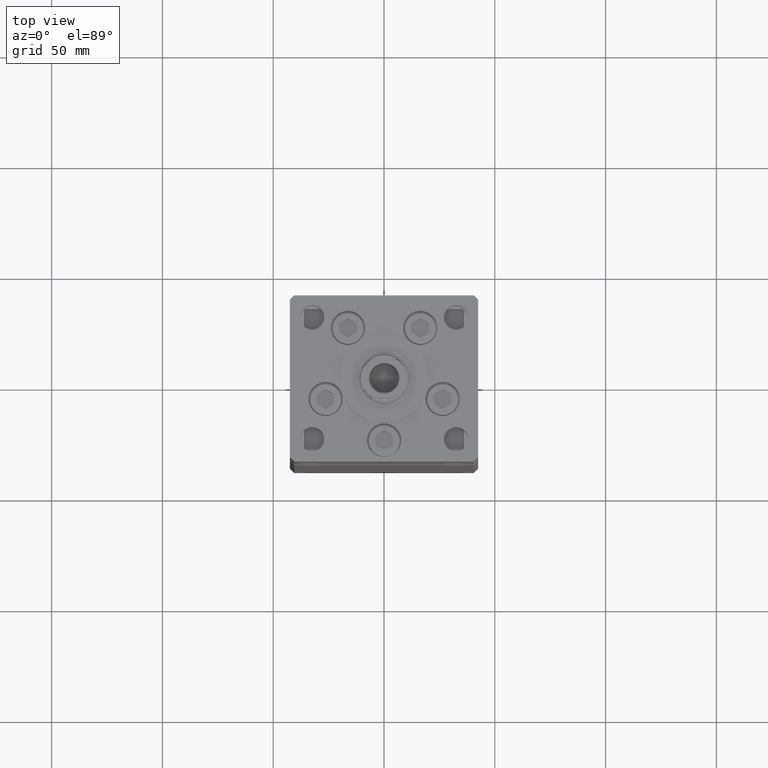
[diagram: clean part render]
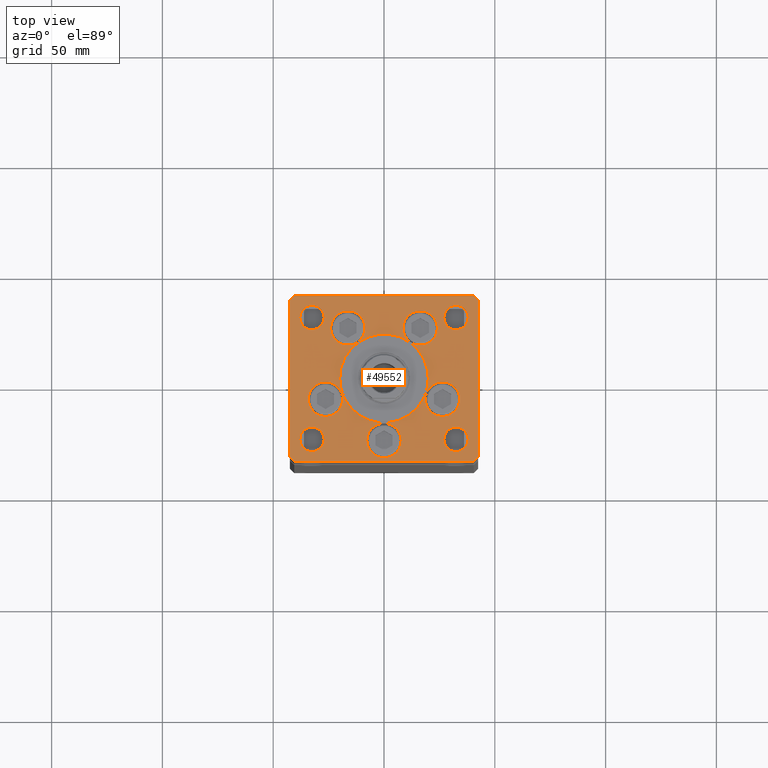
[diagram: same view with one face highlighted and labeled with its STEP entity id]
A machine part, top view. The second image highlights one B-rep face of the part: STEP entity #49552.
In plain terms, the highlighted planar face has unit normal (0, 0, 1).
Its self-contained STEP definition (entity closure, byte-faithful):
#594 = DIRECTION ( 'NONE',  ( 0.000000000000000000, 0.000000000000000000, 1.000000000000000000 ) ) ;
#653 = DIRECTION ( 'NONE',  ( 1.000000000000000000, 0.000000000000000000, 0.000000000000000000 ) ) ;
#671 = VERTEX_POINT ( 'NONE', #35401 ) ;
#724 = AXIS2_PLACEMENT_3D ( 'NONE', #4323, #49774, #45723 ) ;
#1323 = ORIENTED_EDGE ( 'NONE', *, *, #9262, .F. ) ;
#1730 = CIRCLE ( 'NONE', #31800, 7.750000000000000000 ) ;
#1876 = CARTESIAN_POINT ( 'NONE',  ( 38.00000000000000000, 27.49999999999999645, 0.000000000000000000 ) ) ;
#1882 = DIRECTION ( 'NONE',  ( 1.000000000000000000, 0.000000000000000000, 0.000000000000000000 ) ) ;
#2254 = FACE_BOUND ( 'NONE', #19009, .T. ) ;
#2547 = VECTOR ( 'NONE', #17879, 1000.000000000000000 ) ;
#2787 = FACE_BOUND ( 'NONE', #43800, .T. ) ;
#3318 = DIRECTION ( 'NONE',  ( 9.773090005503134168E-17, -1.000000000000000000, 0.000000000000000000 ) ) ;
#3429 = EDGE_CURVE ( 'NONE', #31000, #34742, #41898, .T. ) ;
#3577 = ORIENTED_EDGE ( 'NONE', *, *, #48363, .T. ) ;
#3581 = DIRECTION ( 'NONE',  ( 0.000000000000000000, 0.000000000000000000, 1.000000000000000000 ) ) ;
#3625 = DIRECTION ( 'NONE',  ( -1.000000000000000000, -4.283267841918041508E-16, 0.000000000000000000 ) ) ;
#3638 = CARTESIAN_POINT ( 'NONE',  ( -27.00000000000000355, -27.50000000000000355, 0.000000000000000000 ) ) ;
#3678 = ORIENTED_EDGE ( 'NONE', *, *, #15470, .T. ) ;
#4049 = VERTEX_POINT ( 'NONE', #14526 ) ;
#4122 = EDGE_CURVE ( 'NONE', #46448, #17427, #45164, .T. ) ;
#4323 = CARTESIAN_POINT ( 'NONE',  ( -16.32291334290544071, 22.74999999999999289, 0.000000000000000000 ) ) ;
#4527 = AXIS2_PLACEMENT_3D ( 'NONE', #24581, #37474, #653 ) ;
#4537 = ORIENTED_EDGE ( 'NONE', *, *, #4966, .T. ) ;
#4635 = EDGE_CURVE ( 'NONE', #32457, #4049, #36805, .T. ) ;
#4949 = ORIENTED_EDGE ( 'NONE', *, *, #4122, .T. ) ;
#4966 = EDGE_CURVE ( 'NONE', #24144, #25922, #51401, .T. ) ;
#5371 = CIRCLE ( 'NONE', #39734, 7.750000000000000000 ) ;
#5508 = CARTESIAN_POINT ( 'NONE',  ( -20.00000000000000000, -6.938893903907228378E-15, 0.000000000000000000 ) ) ;
#5841 = AXIS2_PLACEMENT_3D ( 'NONE', #22706, #6294, #31319 ) ;
#5997 = VERTEX_POINT ( 'NONE', #27962 ) ;
#6294 = DIRECTION ( 'NONE',  ( 0.000000000000000000, 0.000000000000000000, 1.000000000000000000 ) ) ;
#6395 = AXIS2_PLACEMENT_3D ( 'NONE', #51793, #11420, #20758 ) ;
#7018 = CARTESIAN_POINT ( 'NONE',  ( 40.50000000000000711, 37.50000000000000711, 0.000000000000000000 ) ) ;
#7063 = CARTESIAN_POINT ( 'NONE',  ( 26.39865316429777664, -9.333333333333330373, 0.000000000000000000 ) ) ;
#7826 = EDGE_CURVE ( 'NONE', #27409, #13074, #44521, .T. ) ;
#7900 = DIRECTION ( 'NONE',  ( 1.000000000000000000, 1.370645709413773283E-15, 0.000000000000000000 ) ) ;
#8226 = VECTOR ( 'NONE', #3625, 1000.000000000000000 ) ;
#8261 = EDGE_CURVE ( 'NONE', #15419, #671, #52244, .T. ) ;
#8325 = EDGE_CURVE ( 'NONE', #12261, #29626, #29031, .T. ) ;
#8437 = VERTEX_POINT ( 'NONE', #34687 ) ;
#8676 = CARTESIAN_POINT ( 'NONE',  ( 18.64865316429777664, -9.333333333333328596, 0.000000000000000000 ) ) ;
#9028 = CARTESIAN_POINT ( 'NONE',  ( -40.50000000000000000, 37.49999999999997158, 0.000000000000000000 ) ) ;
#9262 = EDGE_CURVE ( 'NONE', #32547, #23015, #11023, .T. ) ;
#9310 = CARTESIAN_POINT ( 'NONE',  ( 42.50000000000000711, -35.49999999999992895, 0.000000000000000000 ) ) ;
#9434 = CARTESIAN_POINT ( 'NONE',  ( -7.750000000000000000, -28.00000000000000000, 0.000000000000000000 ) ) ;
#9456 = CIRCLE ( 'NONE', #48103, 7.750000000000000000 ) ;
#9707 = VERTEX_POINT ( 'NONE', #49383 ) ;
#9744 = VERTEX_POINT ( 'NONE', #17072 ) ;
#9830 = DIRECTION ( 'NONE',  ( 0.000000000000000000, 0.000000000000000000, 1.000000000000000000 ) ) ;
#9873 = CARTESIAN_POINT ( 'NONE',  ( 32.50000000000000000, -27.50000000000000355, 0.000000000000000000 ) ) ;
#10185 = DIRECTION ( 'NONE',  ( 0.000000000000000000, 0.000000000000000000, 1.000000000000000000 ) ) ;
#10249 = EDGE_CURVE ( 'NONE', #9744, #18575, #23137, .T. ) ;
#10275 = EDGE_CURVE ( 'NONE', #8437, #48485, #15658, .T. ) ;
#10840 = EDGE_CURVE ( 'NONE', #17427, #48818, #46225, .T. ) ;
#11023 = CIRCLE ( 'NONE', #15320, 7.750000000000000000 ) ;
#11066 = CIRCLE ( 'NONE', #32589, 5.499999999999998224 ) ;
#11128 = EDGE_CURVE ( 'NONE', #13074, #27409, #11066, .T. ) ;
#11325 = DIRECTION ( 'NONE',  ( 0.000000000000000000, 0.000000000000000000, 1.000000000000000000 ) ) ;
#11420 = DIRECTION ( 'NONE',  ( 0.000000000000000000, 0.000000000000000000, 1.000000000000000000 ) ) ;
#11878 = AXIS2_PLACEMENT_3D ( 'NONE', #43031, #26082, #42488 ) ;
#12183 = CARTESIAN_POINT ( 'NONE',  ( 40.50000000000000711, 37.50000000000000711, 0.000000000000000000 ) ) ;
#12261 = VERTEX_POINT ( 'NONE', #52870 ) ;
#12697 = LINE ( 'NONE', #40965, #31443 ) ;
#12874 = VERTEX_POINT ( 'NONE', #7018 ) ;
#13038 = LINE ( 'NONE', #33781, #2547 ) ;
#13074 = VERTEX_POINT ( 'NONE', #1876 ) ;
#13620 = VECTOR ( 'NONE', #34923, 1000.000000000000000 ) ;
#14223 = DIRECTION ( 'NONE',  ( 1.000000000000000000, 0.000000000000000000, 0.000000000000000000 ) ) ;
#14434 = CIRCLE ( 'NONE', #44532, 20.00000000000000000 ) ;
#14526 = CARTESIAN_POINT ( 'NONE',  ( 27.00000000000000355, -27.50000000000000355, 0.000000000000000000 ) ) ;
#14627 = CIRCLE ( 'NONE', #28396, 5.499999999999998224 ) ;
#14804 = CIRCLE ( 'NONE', #4527, 20.00000000000000000 ) ;
#14933 = CARTESIAN_POINT ( 'NONE',  ( 0.000000000000000000, -28.00000000000000000, 0.000000000000000000 ) ) ;
#15116 = DIRECTION ( 'NONE',  ( 1.000000000000000000, 0.000000000000000000, 0.000000000000000000 ) ) ;
#15320 = AXIS2_PLACEMENT_3D ( 'NONE', #43557, #38723, #14223 ) ;
#15358 = DIRECTION ( 'NONE',  ( 1.000000000000000000, 0.000000000000000000, 0.000000000000000000 ) ) ;
#15378 = DIRECTION ( 'NONE',  ( -0.7071067811865524577, 0.7071067811865426878, 0.000000000000000000 ) ) ;
#15419 = VERTEX_POINT ( 'NONE', #28933 ) ;
#15470 = EDGE_CURVE ( 'NONE', #25922, #24144, #14627, .T. ) ;
#15658 = LINE ( 'NONE', #52262, #25697 ) ;
#15754 = ORIENTED_EDGE ( 'NONE', *, *, #36021, .T. ) ;
#15763 = EDGE_CURVE ( 'NONE', #28450, #23294, #20712, .T. ) ;
#15805 = EDGE_LOOP ( 'NONE', ( #32218, #21768 ) ) ;
#17044 = ORIENTED_EDGE ( 'NONE', *, *, #8261, .F. ) ;
#17072 = CARTESIAN_POINT ( 'NONE',  ( 34.14865316429777664, -9.333333333333330373, 0.000000000000000000 ) ) ;
#17427 = VERTEX_POINT ( 'NONE', #9310 ) ;
#17462 = DIRECTION ( 'NONE',  ( 1.000000000000000000, 0.000000000000000000, 0.000000000000000000 ) ) ;
#17879 = DIRECTION ( 'NONE',  ( 0.7071067811865487940, -0.7071067811865463515, 0.000000000000000000 ) ) ;
#18569 = ORIENTED_EDGE ( 'NONE', *, *, #21909, .F. ) ;
#18575 = VERTEX_POINT ( 'NONE', #8676 ) ;
#19009 = EDGE_LOOP ( 'NONE', ( #50948, #42644 ) ) ;
#19172 = FACE_OUTER_BOUND ( 'NONE', #41273, .T. ) ;
#19321 = ORIENTED_EDGE ( 'NONE', *, *, #10275, .T. ) ;
#19496 = CARTESIAN_POINT ( 'NONE',  ( -42.50000000000000000, -35.50000000000004263, 0.000000000000000000 ) ) ;
#19917 = DIRECTION ( 'NONE',  ( 0.7071067811865474617, 0.7071067811865474617, 0.000000000000000000 ) ) ;
#19920 = ORIENTED_EDGE ( 'NONE', *, *, #38107, .F. ) ;
#20712 = CIRCLE ( 'NONE', #49056, 5.499999999999998224 ) ;
#20758 = DIRECTION ( 'NONE',  ( 1.000000000000000000, 0.000000000000000000, 0.000000000000000000 ) ) ;
#21130 = EDGE_CURVE ( 'NONE', #9707, #28886, #14804, .T. ) ;
#21306 = EDGE_CURVE ( 'NONE', #48818, #12874, #27230, .T. ) ;
#21768 = ORIENTED_EDGE ( 'NONE', *, *, #8325, .F. ) ;
#21909 = EDGE_CURVE ( 'NONE', #23015, #32547, #5371, .T. ) ;
#22080 = VERTEX_POINT ( 'NONE', #9028 ) ;
#22109 = DIRECTION ( 'NONE',  ( -0.7071067811865536790, -0.7071067811865414665, 0.000000000000000000 ) ) ;
#22138 = FACE_BOUND ( 'NONE', #39496, .T. ) ;
#22706 = CARTESIAN_POINT ( 'NONE',  ( 32.50000000000000000, 27.49999999999999645, 0.000000000000000000 ) ) ;
#22943 = FACE_BOUND ( 'NONE', #15805, .T. ) ;
#23015 = VERTEX_POINT ( 'NONE', #25125 ) ;
#23137 = CIRCLE ( 'NONE', #29114, 7.750000000000000000 ) ;
#23294 = VERTEX_POINT ( 'NONE', #39890 ) ;
#23572 = CARTESIAN_POINT ( 'NONE',  ( -18.64865316429777664, -9.333333333333330373, 0.000000000000000000 ) ) ;
#23805 = DIRECTION ( 'NONE',  ( -1.000000000000000000, 0.000000000000000000, 0.000000000000000000 ) ) ;
#24144 = VERTEX_POINT ( 'NONE', #47723 ) ;
#24411 = ORIENTED_EDGE ( 'NONE', *, *, #28041, .T. ) ;
#24486 = VECTOR ( 'NONE', #22109, 1000.000000000000000 ) ;
#24581 = CARTESIAN_POINT ( 'NONE',  ( 0.000000000000000000, -6.938893903907228378E-15, 0.000000000000000000 ) ) ;
#25125 = CARTESIAN_POINT ( 'NONE',  ( -34.14865316429777664, -9.333333333333328596, 0.000000000000000000 ) ) ;
#25257 = CARTESIAN_POINT ( 'NONE',  ( 40.50000000000001421, -37.49999999999992184, 0.000000000000000000 ) ) ;
#25275 = ORIENTED_EDGE ( 'NONE', *, *, #21306, .T. ) ;
#25697 = VECTOR ( 'NONE', #3318, 1000.000000000000000 ) ;
#25922 = VERTEX_POINT ( 'NONE', #52219 ) ;
#26082 = DIRECTION ( 'NONE',  ( -0.000000000000000000, -0.000000000000000000, -1.000000000000000000 ) ) ;
#26356 = AXIS2_PLACEMENT_3D ( 'NONE', #32632, #49034, #28577 ) ;
#26407 = CARTESIAN_POINT ( 'NONE',  ( -40.50000000000000000, 37.49999999999997158, 0.000000000000000000 ) ) ;
#26438 = FACE_BOUND ( 'NONE', #52886, .T. ) ;
#26709 = FACE_BOUND ( 'NONE', #31374, .T. ) ;
#27230 = LINE ( 'NONE', #51980, #48340 ) ;
#27409 = VERTEX_POINT ( 'NONE', #35965 ) ;
#27721 = ORIENTED_EDGE ( 'NONE', *, *, #32992, .T. ) ;
#27962 = CARTESIAN_POINT ( 'NONE',  ( -40.50000000000000711, -37.50000000000003553, 0.000000000000000000 ) ) ;
#28041 = EDGE_CURVE ( 'NONE', #4049, #32457, #44231, .T. ) ;
#28396 = AXIS2_PLACEMENT_3D ( 'NONE', #39941, #36700, #23805 ) ;
#28450 = VERTEX_POINT ( 'NONE', #3638 ) ;
#28529 = CARTESIAN_POINT ( 'NONE',  ( 16.32291334290544071, 22.74999999999999289, 0.000000000000000000 ) ) ;
#28577 = DIRECTION ( 'NONE',  ( 1.000000000000000000, 0.000000000000000000, 0.000000000000000000 ) ) ;
#28683 = DIRECTION ( 'NONE',  ( 0.000000000000000000, 0.000000000000000000, 1.000000000000000000 ) ) ;
#28886 = VERTEX_POINT ( 'NONE', #5508 ) ;
#28933 = CARTESIAN_POINT ( 'NONE',  ( 24.07291334290544071, 22.74999999999999289, 0.000000000000000000 ) ) ;
#28973 = EDGE_LOOP ( 'NONE', ( #3678, #4537 ) ) ;
#29007 = ORIENTED_EDGE ( 'NONE', *, *, #51865, .F. ) ;
#29031 = CIRCLE ( 'NONE', #724, 7.750000000000000000 ) ;
#29114 = AXIS2_PLACEMENT_3D ( 'NONE', #7063, #3581, #32091 ) ;
#29272 = DIRECTION ( 'NONE',  ( -0.000000000000000000, -0.000000000000000000, -1.000000000000000000 ) ) ;
#29348 = ORIENTED_EDGE ( 'NONE', *, *, #21130, .F. ) ;
#29626 = VERTEX_POINT ( 'NONE', #33047 ) ;
#29670 = CARTESIAN_POINT ( 'NONE',  ( 32.50000000000000000, -27.50000000000000355, 0.000000000000000000 ) ) ;
#30092 = CARTESIAN_POINT ( 'NONE',  ( 42.50000000000000711, -35.49999999999992895, 0.000000000000000000 ) ) ;
#30664 = AXIS2_PLACEMENT_3D ( 'NONE', #14933, #31369, #47770 ) ;
#30832 = ORIENTED_EDGE ( 'NONE', *, *, #10249, .F. ) ;
#30885 = DIRECTION ( 'NONE',  ( 0.000000000000000000, 0.000000000000000000, 1.000000000000000000 ) ) ;
#30903 = EDGE_CURVE ( 'NONE', #671, #15419, #35598, .T. ) ;
#31000 = VERTEX_POINT ( 'NONE', #9434 ) ;
#31319 = DIRECTION ( 'NONE',  ( 1.000000000000000000, 0.000000000000000000, 0.000000000000000000 ) ) ;
#31369 = DIRECTION ( 'NONE',  ( 0.000000000000000000, 0.000000000000000000, 1.000000000000000000 ) ) ;
#31374 = EDGE_LOOP ( 'NONE', ( #1323, #18569 ) ) ;
#31443 = VECTOR ( 'NONE', #7900, 1000.000000000000000 ) ;
#31800 = AXIS2_PLACEMENT_3D ( 'NONE', #34425, #10185, #41676 ) ;
#32091 = DIRECTION ( 'NONE',  ( 1.000000000000000000, 0.000000000000000000, 0.000000000000000000 ) ) ;
#32186 = CARTESIAN_POINT ( 'NONE',  ( 7.750000000000000000, -28.00000000000000000, 0.000000000000000000 ) ) ;
#32218 = ORIENTED_EDGE ( 'NONE', *, *, #51919, .F. ) ;
#32457 = VERTEX_POINT ( 'NONE', #44008 ) ;
#32547 = VERTEX_POINT ( 'NONE', #23572 ) ;
#32589 = AXIS2_PLACEMENT_3D ( 'NONE', #45899, #9830, #42926 ) ;
#32632 = CARTESIAN_POINT ( 'NONE',  ( -32.50000000000000000, -27.50000000000000355, 0.000000000000000000 ) ) ;
#32986 = CARTESIAN_POINT ( 'NONE',  ( -26.39865316429777664, -9.333333333333330373, 0.000000000000000000 ) ) ;
#32992 = EDGE_CURVE ( 'NONE', #22080, #8437, #42812, .T. ) ;
#33047 = CARTESIAN_POINT ( 'NONE',  ( -8.572913342905440715, 22.74999999999999289, 0.000000000000000000 ) ) ;
#33443 = LINE ( 'NONE', #12183, #8226 ) ;
#33716 = DIRECTION ( 'NONE',  ( -0.000000000000000000, -0.000000000000000000, -1.000000000000000000 ) ) ;
#33781 = CARTESIAN_POINT ( 'NONE',  ( -42.50000000000000000, -35.50000000000004263, 0.000000000000000000 ) ) ;
#33860 = EDGE_LOOP ( 'NONE', ( #49617, #24411 ) ) ;
#33952 = AXIS2_PLACEMENT_3D ( 'NONE', #9873, #29272, #34383 ) ;
#34163 = DIRECTION ( 'NONE',  ( 0.000000000000000000, 0.000000000000000000, 1.000000000000000000 ) ) ;
#34349 = ORIENTED_EDGE ( 'NONE', *, *, #30903, .F. ) ;
#34383 = DIRECTION ( 'NONE',  ( -1.000000000000000000, 0.000000000000000000, 0.000000000000000000 ) ) ;
#34425 = CARTESIAN_POINT ( 'NONE',  ( -16.32291334290544071, 22.74999999999999289, 0.000000000000000000 ) ) ;
#34687 = CARTESIAN_POINT ( 'NONE',  ( -42.50000000000000711, 35.50000000000000000, 0.000000000000000000 ) ) ;
#34742 = VERTEX_POINT ( 'NONE', #32186 ) ;
#34923 = DIRECTION ( 'NONE',  ( 9.773090005503145261E-17, 1.000000000000000000, 0.000000000000000000 ) ) ;
#35401 = CARTESIAN_POINT ( 'NONE',  ( 8.572913342905442491, 22.74999999999999289, 0.000000000000000000 ) ) ;
#35598 = CIRCLE ( 'NONE', #6395, 7.750000000000000000 ) ;
#35965 = CARTESIAN_POINT ( 'NONE',  ( 27.00000000000000355, 27.49999999999999645, 0.000000000000000000 ) ) ;
#36009 = EDGE_CURVE ( 'NONE', #5997, #46448, #12697, .T. ) ;
#36021 = EDGE_CURVE ( 'NONE', #12874, #22080, #33443, .T. ) ;
#36331 = ORIENTED_EDGE ( 'NONE', *, *, #37810, .F. ) ;
#36700 = DIRECTION ( 'NONE',  ( -0.000000000000000000, -0.000000000000000000, -1.000000000000000000 ) ) ;
#36805 = CIRCLE ( 'NONE', #47946, 5.499999999999998224 ) ;
#36911 = ORIENTED_EDGE ( 'NONE', *, *, #36009, .T. ) ;
#37474 = DIRECTION ( 'NONE',  ( 0.000000000000000000, 0.000000000000000000, 1.000000000000000000 ) ) ;
#37810 = EDGE_CURVE ( 'NONE', #34742, #31000, #49560, .T. ) ;
#38107 = EDGE_CURVE ( 'NONE', #23294, #28450, #50444, .T. ) ;
#38178 = CARTESIAN_POINT ( 'NONE',  ( 26.39865316429777664, -9.333333333333330373, 0.000000000000000000 ) ) ;
#38707 = DIRECTION ( 'NONE',  ( 0.000000000000000000, 0.000000000000000000, 1.000000000000000000 ) ) ;
#38723 = DIRECTION ( 'NONE',  ( 0.000000000000000000, 0.000000000000000000, 1.000000000000000000 ) ) ;
#38811 = DIRECTION ( 'NONE',  ( -0.000000000000000000, 0.000000000000000000, 1.000000000000000000 ) ) ;
#39183 = EDGE_LOOP ( 'NONE', ( #30832, #29007 ) ) ;
#39342 = FACE_BOUND ( 'NONE', #33860, .T. ) ;
#39496 = EDGE_LOOP ( 'NONE', ( #40472, #29348 ) ) ;
#39614 = PLANE ( 'NONE',  #53190 ) ;
#39734 = AXIS2_PLACEMENT_3D ( 'NONE', #32986, #28683, #49397 ) ;
#39890 = CARTESIAN_POINT ( 'NONE',  ( -38.00000000000000000, -27.50000000000000355, 0.000000000000000000 ) ) ;
#39941 = CARTESIAN_POINT ( 'NONE',  ( -32.50000000000000000, 27.50000000000000711, 0.000000000000000000 ) ) ;
#40472 = ORIENTED_EDGE ( 'NONE', *, *, #41685, .F. ) ;
#40965 = CARTESIAN_POINT ( 'NONE',  ( -40.50000000000000711, -37.50000000000003553, 0.000000000000000000 ) ) ;
#41273 = EDGE_LOOP ( 'NONE', ( #3577, #36911, #4949, #41859, #25275, #15754, #27721, #19321 ) ) ;
#41443 = CARTESIAN_POINT ( 'NONE',  ( -32.50000000000000000, -27.50000000000000355, 0.000000000000000000 ) ) ;
#41676 = DIRECTION ( 'NONE',  ( 1.000000000000000000, 0.000000000000000000, 0.000000000000000000 ) ) ;
#41685 = EDGE_CURVE ( 'NONE', #28886, #9707, #14434, .T. ) ;
#41708 = DIRECTION ( 'NONE',  ( 1.000000000000000000, 0.000000000000000000, 0.000000000000000000 ) ) ;
#41859 = ORIENTED_EDGE ( 'NONE', *, *, #10840, .T. ) ;
#41898 = CIRCLE ( 'NONE', #51359, 7.750000000000000000 ) ;
#42488 = DIRECTION ( 'NONE',  ( -1.000000000000000000, 0.000000000000000000, 0.000000000000000000 ) ) ;
#42577 = FACE_BOUND ( 'NONE', #49094, .T. ) ;
#42644 = ORIENTED_EDGE ( 'NONE', *, *, #7826, .F. ) ;
#42812 = LINE ( 'NONE', #26407, #24486 ) ;
#42926 = DIRECTION ( 'NONE',  ( 1.000000000000000000, 0.000000000000000000, 0.000000000000000000 ) ) ;
#43031 = CARTESIAN_POINT ( 'NONE',  ( -32.50000000000000000, 27.50000000000000711, 0.000000000000000000 ) ) ;
#43373 = CARTESIAN_POINT ( 'NONE',  ( 42.50000000000001421, 35.50000000000002132, 0.000000000000000000 ) ) ;
#43557 = CARTESIAN_POINT ( 'NONE',  ( -26.39865316429777664, -9.333333333333330373, 0.000000000000000000 ) ) ;
#43800 = EDGE_LOOP ( 'NONE', ( #36331, #48969 ) ) ;
#44008 = CARTESIAN_POINT ( 'NONE',  ( 38.00000000000000000, -27.50000000000000355, 0.000000000000000000 ) ) ;
#44231 = CIRCLE ( 'NONE', #33952, 5.499999999999998224 ) ;
#44521 = CIRCLE ( 'NONE', #5841, 5.499999999999998224 ) ;
#44532 = AXIS2_PLACEMENT_3D ( 'NONE', #45463, #34163, #17462 ) ;
#45164 = LINE ( 'NONE', #25257, #53124 ) ;
#45463 = CARTESIAN_POINT ( 'NONE',  ( 0.000000000000000000, -6.938893903907228378E-15, 0.000000000000000000 ) ) ;
#45723 = DIRECTION ( 'NONE',  ( 1.000000000000000000, 0.000000000000000000, 0.000000000000000000 ) ) ;
#45899 = CARTESIAN_POINT ( 'NONE',  ( 32.50000000000000000, 27.49999999999999645, 0.000000000000000000 ) ) ;
#46076 = DIRECTION ( 'NONE',  ( -1.000000000000000000, 0.000000000000000000, 0.000000000000000000 ) ) ;
#46225 = LINE ( 'NONE', #30092, #13620 ) ;
#46448 = VERTEX_POINT ( 'NONE', #49606 ) ;
#46878 = FACE_BOUND ( 'NONE', #28973, .T. ) ;
#47083 = AXIS2_PLACEMENT_3D ( 'NONE', #28529, #11325, #15358 ) ;
#47282 = DIRECTION ( 'NONE',  ( 1.000000000000000000, 0.000000000000000000, 0.000000000000000000 ) ) ;
#47421 = FACE_BOUND ( 'NONE', #39183, .T. ) ;
#47723 = CARTESIAN_POINT ( 'NONE',  ( -38.00000000000000000, 27.50000000000000711, 0.000000000000000000 ) ) ;
#47770 = DIRECTION ( 'NONE',  ( 1.000000000000000000, 0.000000000000000000, 0.000000000000000000 ) ) ;
#47946 = AXIS2_PLACEMENT_3D ( 'NONE', #29670, #33716, #46076 ) ;
#48103 = AXIS2_PLACEMENT_3D ( 'NONE', #38178, #38707, #1882 ) ;
#48340 = VECTOR ( 'NONE', #15378, 1000.000000000000000 ) ;
#48363 = EDGE_CURVE ( 'NONE', #48485, #5997, #13038, .T. ) ;
#48485 = VERTEX_POINT ( 'NONE', #19496 ) ;
#48818 = VERTEX_POINT ( 'NONE', #43373 ) ;
#48969 = ORIENTED_EDGE ( 'NONE', *, *, #3429, .F. ) ;
#49034 = DIRECTION ( 'NONE',  ( 0.000000000000000000, 0.000000000000000000, 1.000000000000000000 ) ) ;
#49056 = AXIS2_PLACEMENT_3D ( 'NONE', #41443, #594, #41708 ) ;
#49094 = EDGE_LOOP ( 'NONE', ( #17044, #34349 ) ) ;
#49383 = CARTESIAN_POINT ( 'NONE',  ( 20.00000000000000000, -4.489600305612522259E-15, 0.000000000000000000 ) ) ;
#49397 = DIRECTION ( 'NONE',  ( 1.000000000000000000, 0.000000000000000000, 0.000000000000000000 ) ) ;
#49552 = ADVANCED_FACE ( 'NONE', ( #22138, #22943, #42577, #47421, #2787, #26709, #46878, #2254, #26438, #19172, #39342 ), #39614, .T. ) ;
#49560 = CIRCLE ( 'NONE', #30664, 7.750000000000000000 ) ;
#49606 = CARTESIAN_POINT ( 'NONE',  ( 40.50000000000001421, -37.49999999999992184, 0.000000000000000000 ) ) ;
#49617 = ORIENTED_EDGE ( 'NONE', *, *, #4635, .T. ) ;
#49774 = DIRECTION ( 'NONE',  ( 0.000000000000000000, 0.000000000000000000, 1.000000000000000000 ) ) ;
#50241 = ORIENTED_EDGE ( 'NONE', *, *, #15763, .F. ) ;
#50444 = CIRCLE ( 'NONE', #26356, 5.499999999999998224 ) ;
#50948 = ORIENTED_EDGE ( 'NONE', *, *, #11128, .F. ) ;
#51359 = AXIS2_PLACEMENT_3D ( 'NONE', #51597, #30885, #47282 ) ;
#51401 = CIRCLE ( 'NONE', #11878, 5.499999999999998224 ) ;
#51597 = CARTESIAN_POINT ( 'NONE',  ( 0.000000000000000000, -28.00000000000000000, 0.000000000000000000 ) ) ;
#51793 = CARTESIAN_POINT ( 'NONE',  ( 16.32291334290544071, 22.74999999999999289, 0.000000000000000000 ) ) ;
#51865 = EDGE_CURVE ( 'NONE', #18575, #9744, #9456, .T. ) ;
#51919 = EDGE_CURVE ( 'NONE', #29626, #12261, #1730, .T. ) ;
#51980 = CARTESIAN_POINT ( 'NONE',  ( 42.50000000000001421, 35.50000000000002132, 0.000000000000000000 ) ) ;
#51991 = CARTESIAN_POINT ( 'NONE',  ( 0.000000000000000000, 0.000000000000000000, 0.000000000000000000 ) ) ;
#52219 = CARTESIAN_POINT ( 'NONE',  ( -27.00000000000000355, 27.50000000000000711, 0.000000000000000000 ) ) ;
#52244 = CIRCLE ( 'NONE', #47083, 7.750000000000000000 ) ;
#52262 = CARTESIAN_POINT ( 'NONE',  ( -42.50000000000000711, 35.50000000000000000, 0.000000000000000000 ) ) ;
#52870 = CARTESIAN_POINT ( 'NONE',  ( -24.07291334290544071, 22.74999999999999289, 0.000000000000000000 ) ) ;
#52886 = EDGE_LOOP ( 'NONE', ( #50241, #19920 ) ) ;
#53124 = VECTOR ( 'NONE', #19917, 1000.000000000000114 ) ;
#53190 = AXIS2_PLACEMENT_3D ( 'NONE', #51991, #38811, #15116 ) ;